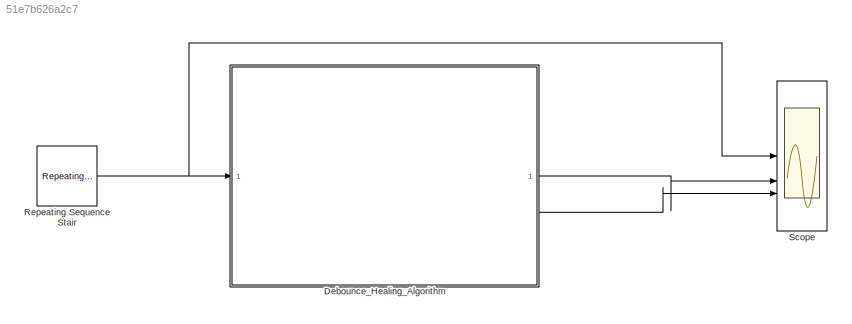
MODEL slx_51e7b626a2c7
KIND model
CONFIG AbsTol = auto
CONFIG EnableMultiTasking = off
CONFIG FixedStep = 0.1
CONFIG MaxStep = auto
CONFIG MinStep = auto
CONFIG RelTol = 1e-3
CONFIG SampleTimeConstraint = Unconstrained
CONFIG SolverName = FixedStepDiscrete
CONFIG StartTime = 0.0
CONFIG StopTime = 10.0
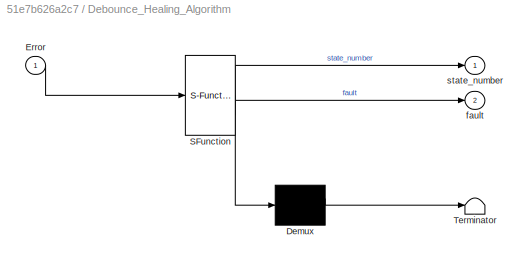
BLOCK [SubSystem] Debounce_Healing_Algorithm
  ErrorFcn = Stateflow.Translate.translate
  PermitHierarchicalResolution = ExplicitOnly
  SFBlockType = Chart
  TreatAsAtomicUnit = on
BLOCK [Demux] Debounce_Healing_Algorithm/ Demux 
  Outputs = 1
BLOCK [S-Function] Debounce_Healing_Algorithm/ SFunction 
  EnableBusSupport = on
  FunctionName = sf_sfun
  PortCounts = [1 3]
  SFcnIsStateOwnerBlock = off
  SFunctionDeploymentMode = off
  Tag = Stateflow S-Function 3
BLOCK [Terminator] Debounce_Healing_Algorithm/ Terminator 
BLOCK [Inport] Debounce_Healing_Algorithm/Error
BLOCK [Outport] Debounce_Healing_Algorithm/fault
  Port = 2
BLOCK [Outport] Debounce_Healing_Algorithm/state_number
BLOCK [Reference] Repeating Sequence Stair  REF=simulink/Sources/Repeating
Sequence
Stair
  SourceBlock = simulink/Sources/Repeating\nSequence\nStair
  SourceType = Repeating Sequence Stair
BLOCK [Scope] Scope
  Floating = off
  NumInputPorts = 3
  ScopeSpecificationString = Simulink.scopes.TimeScopeBlockCfg('CurrentConfiguration', extmgr.ConfigurationSet(extmgr.Configuration('Core','General UI',true,'FigureColor',[0.313725490196078 0.313725490196078 0.313725490196078]),extmgr.Configuration('Core','Source UI',true),extmgr.Configuration('Sources','WiredSimulink',true),extmgr.Configuration('Visuals','Time Domain',true,'SerializedDisplays',{struct('MinYLimReal','-0.125',...<+3346ch>
LINE Debounce_Healing_Algorithm:1 -> Scope:2
LINE Debounce_Healing_Algorithm:2 -> Scope:3
NET Repeating Sequence Stair:1 -> Debounce_Healing_Algorithm:1, Scope:1
note: NET lines group one-source signal fan-out (src -> all destinations, sorted); 1:1 wires keep LINE
CHART Debounce_Healing_Algorithm states=3 transitions=5
  STATE_LABEL 'Idle\nen:\nstate_number = 1;\nfault = false;'
  STATE_LABEL 'Debounce\nen:\nstate_number = 2;\nfault = false;'
  STATE_LABEL 'Active\nen:\nstate_number = 3;\nfault = true;'
CHART  states=0 transitions=0
